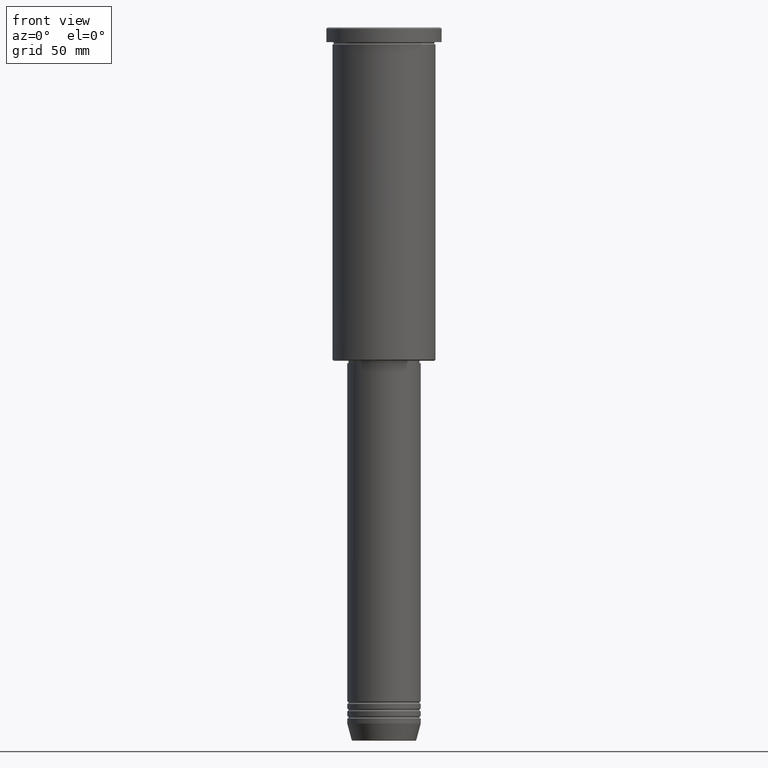
[diagram: clean part render]
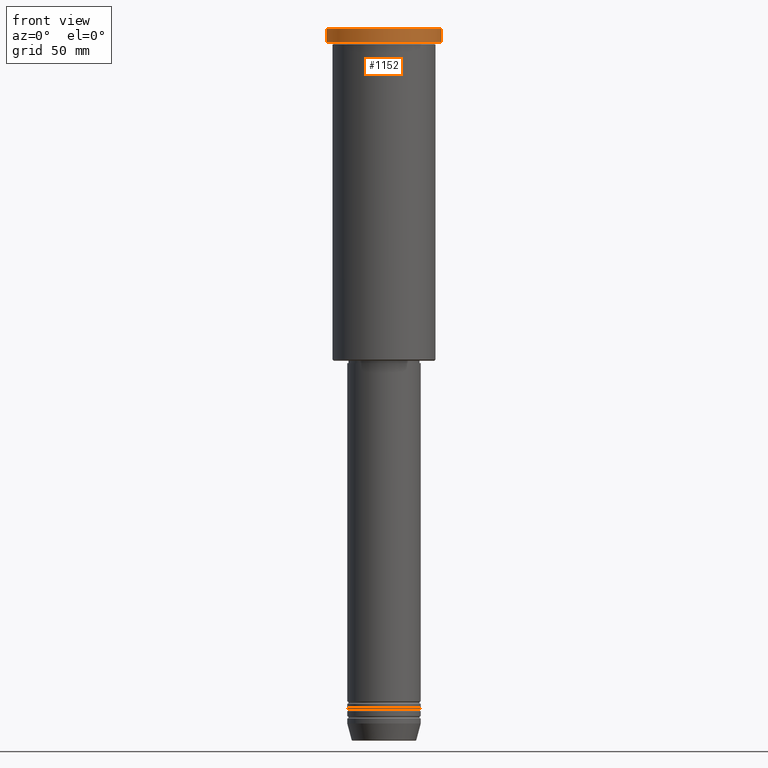
[diagram: same view with one face highlighted and labeled with its STEP entity id]
A machine part, front view. The second image highlights one B-rep face of the part: STEP entity #1152.
In plain terms, the highlighted cylindrical surface (partial cylindrical patch) has radius 23.5 mm, axis along (-0, -0, 1).
Its self-contained STEP definition (entity closure, byte-faithful):
#11 = LINE ( 'NONE', #1002, #1020 ) ;
#25 = VERTEX_POINT ( 'NONE', #751 ) ;
#37 = LINE ( 'NONE', #642, #581 ) ;
#69 = CARTESIAN_POINT ( 'NONE',  ( 23.50000000000000000, 0.000000000000000000, -0.5000000000000281997 ) ) ;
#119 = CARTESIAN_POINT ( 'NONE',  ( 0.000000000000000000, 0.000000000000000000, 0.000000000000000000 ) ) ;
#126 = VERTEX_POINT ( 'NONE', #989 ) ;
#133 = DIRECTION ( 'NONE',  ( -0.000000000000000000, -0.000000000000000000, 1.000000000000000000 ) ) ;
#136 = CARTESIAN_POINT ( 'NONE',  ( -23.50000000000000000, 2.877919977996280320E-15, -5.999999999999994671 ) ) ;
#184 = EDGE_CURVE ( 'NONE', #734, #126, #267, .T. ) ;
#247 = AXIS2_PLACEMENT_3D ( 'NONE', #119, #133, #491 ) ;
#251 = DIRECTION ( 'NONE',  ( 1.000000000000000000, 0.000000000000000000, 0.000000000000000000 ) ) ;
#254 = CARTESIAN_POINT ( 'NONE',  ( 0.000000000000000000, 0.000000000000000000, -0.5000000000000281997 ) ) ;
#267 = CIRCLE ( 'NONE', #923, 23.50000000000000000 ) ;
#268 = EDGE_CURVE ( 'NONE', #734, #25, #11, .T. ) ;
#276 = ORIENTED_EDGE ( 'NONE', *, *, #268, .F. ) ;
#332 = DIRECTION ( 'NONE',  ( 0.000000000000000000, 0.000000000000000000, -1.000000000000000000 ) ) ;
#481 = ORIENTED_EDGE ( 'NONE', *, *, #810, .T. ) ;
#491 = DIRECTION ( 'NONE',  ( 1.000000000000000000, 0.000000000000000000, 0.000000000000000000 ) ) ;
#515 = DIRECTION ( 'NONE',  ( 1.000000000000000000, 0.000000000000000000, 0.000000000000000000 ) ) ;
#581 = VECTOR ( 'NONE', #1029, 1000.000000000000000 ) ;
#586 = ORIENTED_EDGE ( 'NONE', *, *, #1108, .T. ) ;
#642 = CARTESIAN_POINT ( 'NONE',  ( 23.50000000000000000, 0.000000000000000000, 0.000000000000000000 ) ) ;
#660 = ORIENTED_EDGE ( 'NONE', *, *, #184, .T. ) ;
#731 = DIRECTION ( 'NONE',  ( -0.000000000000000000, -0.000000000000000000, 1.000000000000000000 ) ) ;
#734 = VERTEX_POINT ( 'NONE', #136 ) ;
#740 = CYLINDRICAL_SURFACE ( 'NONE', #247, 23.50000000000000000 ) ;
#751 = CARTESIAN_POINT ( 'NONE',  ( -23.50000000000000000, 2.877919977996280320E-15, -0.5000000000000281997 ) ) ;
#810 = EDGE_CURVE ( 'NONE', #827, #25, #816, .T. ) ;
#816 = CIRCLE ( 'NONE', #929, 23.50000000000000000 ) ;
#827 = VERTEX_POINT ( 'NONE', #69 ) ;
#923 = AXIS2_PLACEMENT_3D ( 'NONE', #1175, #1062, #251 ) ;
#929 = AXIS2_PLACEMENT_3D ( 'NONE', #254, #332, #515 ) ;
#945 = FACE_OUTER_BOUND ( 'NONE', #1041, .T. ) ;
#989 = CARTESIAN_POINT ( 'NONE',  ( 23.50000000000000000, 0.000000000000000000, -5.999999999999994671 ) ) ;
#1002 = CARTESIAN_POINT ( 'NONE',  ( -23.50000000000000000, 2.877919977996280320E-15, 0.000000000000000000 ) ) ;
#1020 = VECTOR ( 'NONE', #731, 1000.000000000000000 ) ;
#1029 = DIRECTION ( 'NONE',  ( -0.000000000000000000, -0.000000000000000000, 1.000000000000000000 ) ) ;
#1041 = EDGE_LOOP ( 'NONE', ( #276, #660, #586, #481 ) ) ;
#1062 = DIRECTION ( 'NONE',  ( -0.000000000000000000, -0.000000000000000000, 1.000000000000000000 ) ) ;
#1108 = EDGE_CURVE ( 'NONE', #126, #827, #37, .T. ) ;
#1152 = ADVANCED_FACE ( 'NONE', ( #945 ), #740, .T. ) ;
#1175 = CARTESIAN_POINT ( 'NONE',  ( 0.000000000000000000, 0.000000000000000000, -5.999999999999994671 ) ) ;